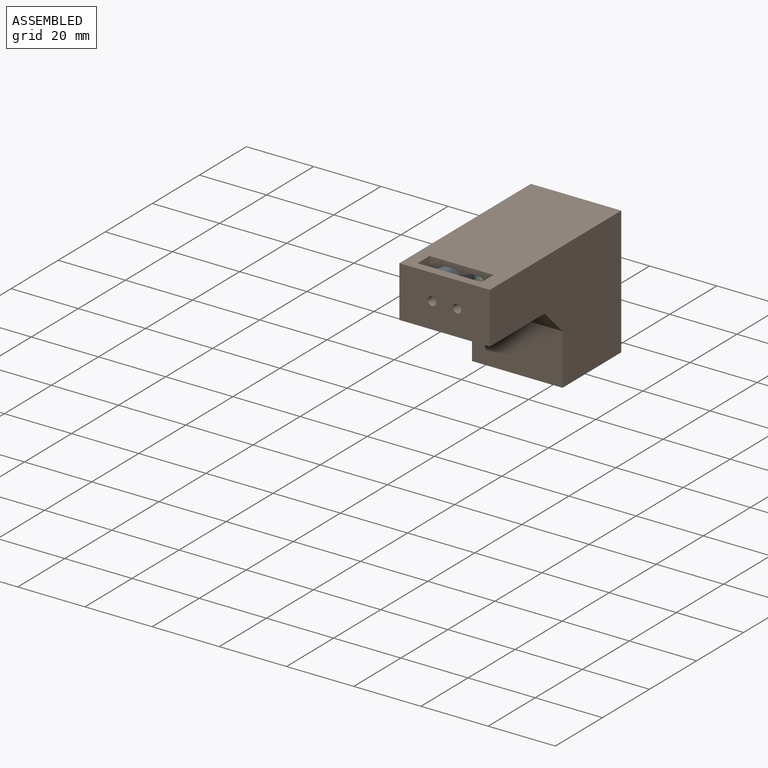
[diagram: assembled view]
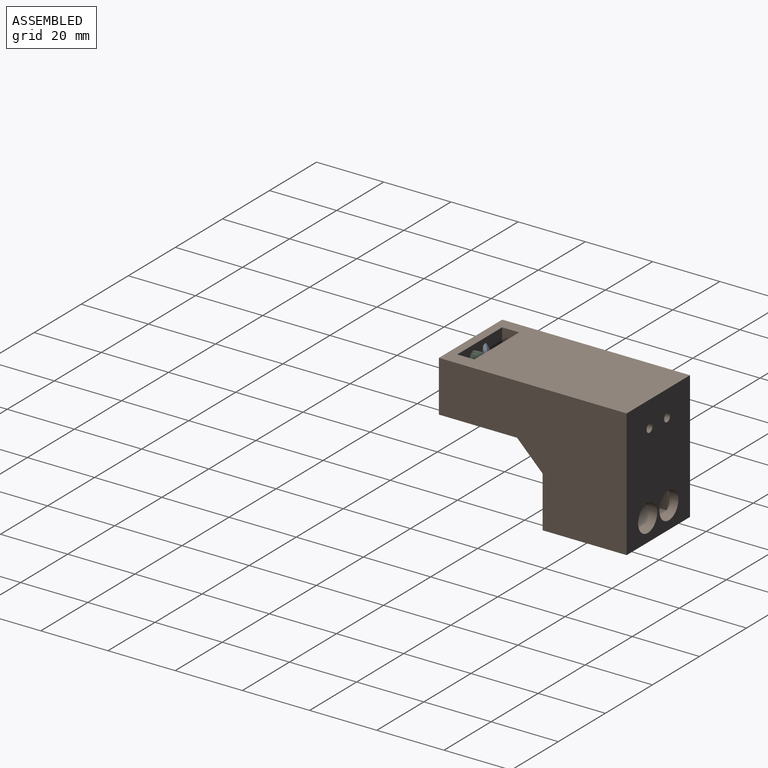
[diagram: assembled view, second angle]
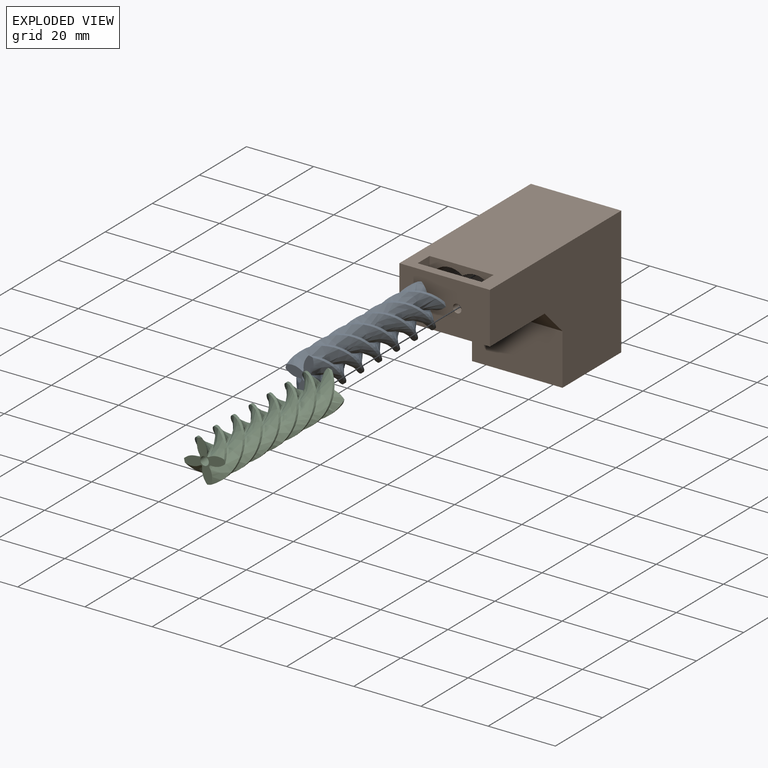
[diagram: exploded view]
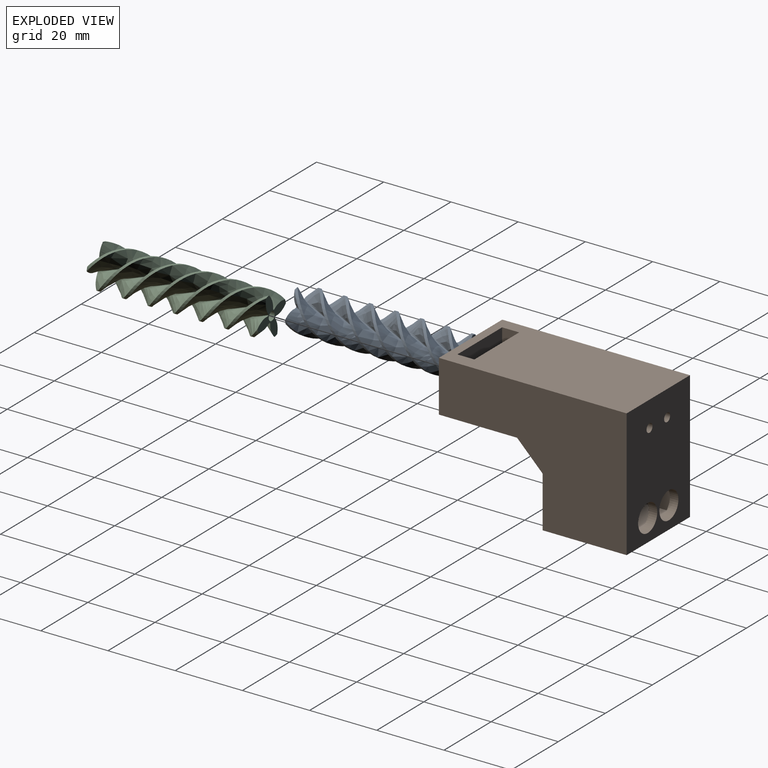
[diagram: exploded view, second angle]
ASSEMBLY  parts=3 mates=2
PART A: 19 faces, bbox 13.2x60.5x13.2 mm
  f0: cylinder r=6.16mm len=50.8mm, axis (0,1,0), area 61mm2, adj f4,f5,f10,f17
  f1: cylinder r=6.16mm len=50.8mm, axis (0,1,0), area 61mm2, adj f4,f5,f14,f16
  f2: cylinder r=6.16mm len=50.8mm, axis (0,1,0), area 61mm2, adj f4,f5,f7,f11
  f3: cylinder r=6.16mm len=50.8mm, axis (0,1,0), area 61mm2, adj f4,f5,f8,f13
  f4: plane 11.9x11.9mm, normal (0,-1,0), area 47.9mm2, adj f0,f1,f2,f3,f6,f7,f8,f9
  f5: plane 12.54x12.54mm, normal (0,1,0), area 48.1mm2, adj f0,f1,f2,f3,f6,f7,f8,f9
  f6: bspline ~56.77x4.28mm, area 59.6mm2, adj f4,f5,f7,f8
  f7: bspline ~60.29x12.95mm, area 295.9mm2, adj f2,f4,f5,f6
  f8: bspline ~57.25x12.95mm, area 295.7mm2, adj f3,f4,f5,f6
  f9: bspline ~56.77x4.28mm, area 59.6mm2, adj f4,f5,f10,f11
  f10: bspline ~60.29x12.95mm, area 295.9mm2, adj f0,f4,f5,f9
  f11: bspline ~57.25x12.95mm, area 295.7mm2, adj f2,f4,f5,f9
  f12: bspline ~56.77x4.28mm, area 59.6mm2, adj f4,f5,f13,f14
  f13: bspline ~60.29x12.95mm, area 295.9mm2, adj f3,f4,f5,f12
  f14: bspline ~57.25x12.95mm, area 295.7mm2, adj f1,f4,f5,f12
  f15: bspline ~56.77x4.28mm, area 59.6mm2, adj f4,f5,f16,f17
  f16: bspline ~60.29x12.95mm, area 295.9mm2, adj f1,f4,f5,f15
  f17: bspline ~57.25x12.95mm, area 295.7mm2, adj f0,f4,f5,f15
  f18: cylinder r=1.27mm len=50.8mm, axis (0,1,0), area 405.4mm2, adj f4,f5
PART B: 26 faces, bbox 26.9x55.9x38.1 mm
  f0: plane 26.91x23.26mm, normal (0,0,1), area 625.9mm2, adj f4,f5,f11,f20
  f1: plane 55.88x26.91mm, normal (0,0,-1), area 1406.9mm2, adj f4,f5,f8,f10,f11,f12,f13,f14
  f2: cylinder r=6.16mm len=50.8mm, axis (0,-1,0), area 1126.3mm2, adj f3,f9,f10,f12,f13,f17,f19
  f3: plane 34.11x19.8mm, normal (0,1,0), area 491.1mm2, adj f2,f6,f7,f9,f17,f18,f22,f24
  f4: plane 55.88x38.12mm, normal (-1,0,0), area 1453.5mm2, adj f0,f1,f8,f11,f20,f21,f23
  f5: plane 55.88x38.12mm, normal (1,0,0), area 1453.5mm2, adj f0,f1,f8,f11,f20,f21,f23
  f6: cylinder r=1.27mm len=2.54mm, axis (0,1,0), area 20.3mm2, adj f3,f8
  f7: cylinder r=1.27mm len=2.54mm, axis (0,1,0), area 20.3mm2, adj f3,f8
  f8: plane 38.12x26.91mm, normal (0,-1,0), area 913.1mm2, adj f1,f4,f5,f6,f7,f23,f24,f25
  f9: cylinder r=6.16mm len=50.8mm, axis (0,-1,0), area 1135.1mm2, adj f2,f3,f10,f12,f14,f18,f19
  f10: plane 19.8x13.79mm, normal (0,-1,0), area 239.2mm2, adj f1,f2,f9,f13,f14,f15,f16
  f11: plane 26.91x15.26mm, normal (0,1,0), area 400.6mm2, adj f0,f1,f4,f5,f15,f16
  f12: plane 19.05x6.53mm, normal (0,1,0), area 44mm2, adj f1,f2,f9,f13,f14
  f13: plane 6.53x5.08mm, normal (1,0,0), area 33.1mm2, adj f1,f2,f10,f12
  f14: plane 5.08x4.88mm, normal (-1,0,0), area 24.8mm2, adj f1,f9,f10,f12
  f15: cylinder r=1.27mm len=2.54mm, axis (0,-1,0), area 20.3mm2, adj f10,f11
  f16: cylinder r=1.27mm len=2.54mm, axis (0,-1,0), area 20.3mm2, adj f10,f11
  f17: plane 24.56x19.92mm, normal (1,0,0), area 489.3mm2, adj f2,f3,f19,f22
  f18: plane 24.56x19.92mm, normal (-1,0,0), area 489.3mm2, adj f3,f9,f19,f22
  f19: plane 24.56x17.77mm, normal (0,-1,0), area 398.6mm2, adj f2,f9,f17,f18,f22
  f20: plane 26.91x7.62mm, normal (0,0.71,0.71), area 290mm2, adj f0,f4,f5,f21
  f21: plane 26.91x15.24mm, normal (0,1,0), area 410.1mm2, adj f4,f5,f20,f23
  f22: plane 19.92x17.77mm, normal (0,0,-1), area 353.9mm2, adj f3,f17,f18,f19
  f23: plane 26.91x25mm, normal (0,0,1), area 672.8mm2, adj f4,f5,f8,f21
  f24: cylinder r=4.04mm len=8.09mm, axis (0,-1,0), area 64.5mm2, adj f3,f8
  f25: cylinder r=4.04mm len=8.09mm, axis (0,-1,0), area 64.5mm2, adj f3,f8
PART C: 19 faces, bbox 13.2x60.5x13.2 mm
  f0: cylinder r=6.16mm len=50.8mm, axis (0,1,0), area 61.9mm2, adj f4,f5,f11,f15
  f1: cylinder r=6.16mm len=50.8mm, axis (0,1,0), area 61.9mm2, adj f4,f5,f12,f17
  f2: cylinder r=6.16mm len=50.8mm, axis (0,1,0), area 61.9mm2, adj f4,f5,f8,f9
  f3: cylinder r=6.16mm len=50.8mm, axis (0,1,0), area 61.9mm2, adj f4,f5,f6,f14
  f4: plane 11.91x11.91mm, normal (0,-1,0), area 47.9mm2, adj f0,f1,f2,f3,f6,f7,f8,f9
  f5: plane 12.56x12.56mm, normal (0,1,0), area 48.1mm2, adj f0,f1,f2,f3,f6,f7,f8,f9
  f6: bspline ~60.29x12.95mm, area 295.9mm2, adj f3,f4,f5,f7
  f7: bspline ~56.77x4.28mm, area 59.6mm2, adj f4,f5,f6,f8
  f8: bspline ~57.25x12.95mm, area 295.7mm2, adj f2,f4,f5,f7
  f9: bspline ~60.29x12.95mm, area 295.9mm2, adj f2,f4,f5,f10
  f10: bspline ~56.77x4.28mm, area 59.6mm2, adj f4,f5,f9,f11
  f11: bspline ~57.25x12.95mm, area 295.7mm2, adj f0,f4,f5,f10
  f12: bspline ~60.29x12.95mm, area 295.9mm2, adj f1,f4,f5,f13
  f13: bspline ~56.77x4.28mm, area 59.6mm2, adj f4,f5,f12,f14
  f14: bspline ~57.25x12.95mm, area 295.7mm2, adj f3,f4,f5,f13
  f15: bspline ~60.29x12.95mm, area 295.9mm2, adj f0,f4,f5,f16
  f16: bspline ~56.77x4.28mm, area 59.6mm2, adj f4,f5,f15,f17
  f17: bspline ~57.25x12.95mm, area 295.7mm2, adj f1,f4,f5,f16
  f18: cylinder r=1.27mm len=50.8mm, axis (0,1,0), area 405.4mm2, adj f4,f5
PLACE A rot(axis=(-0.75,0,-0.66),180deg) t=(-32.15,-100.02,-0.77)mm
PLACE B rot(axis=(1,0,0),180deg) t=(-29.47,-49.22,-6.7)mm fixed
PLACE C rot(axis=(0.07,0,-1),180deg) t=(-22.57,-100.02,-6.31)mm
MATE revolute A.f0 <-> B.f2  axis (0,-1,0) through (-32.94,-49.22,-6.7)mm
MATE revolute B.f7 <-> C.f0  axis (0,-1,0) through (-25.46,-49.22,-6.7)mm
